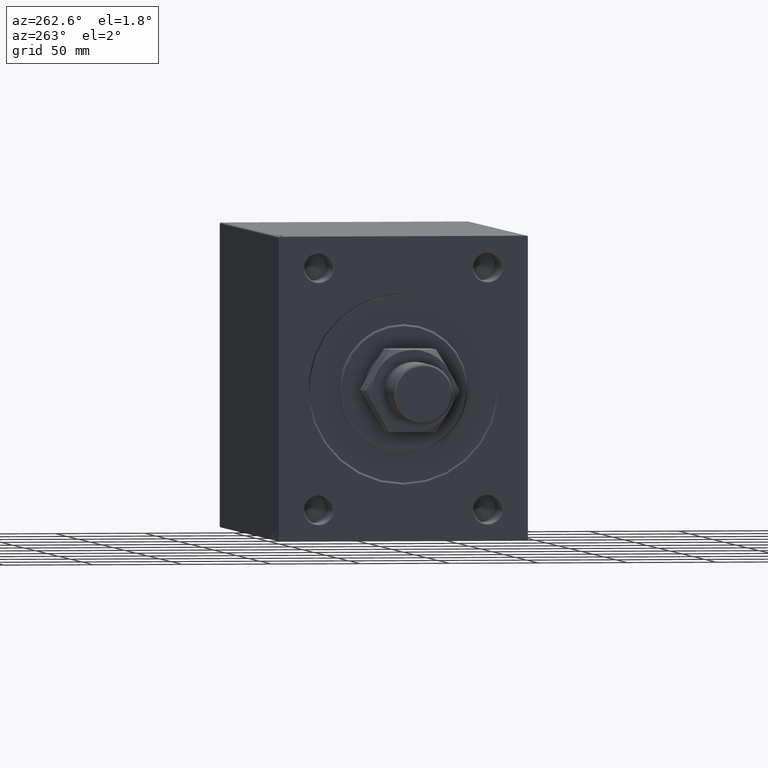
[diagram: clean part render]
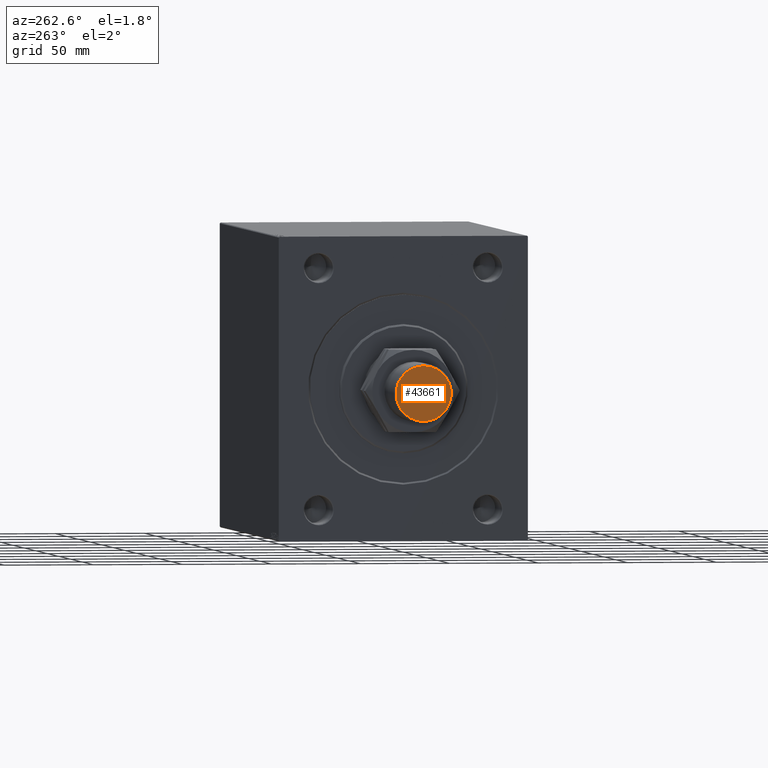
[diagram: same view with one face highlighted and labeled with its STEP entity id]
A machine part, auxiliary view. The second image highlights one B-rep face of the part: STEP entity #43661.
In plain terms, the highlighted planar face has unit normal (-1, 0, 0).
Its self-contained STEP definition (entity closure, byte-faithful):
#2101 = EDGE_CURVE ( 'NONE', #4618, #38456, #37066, .T. ) ;
#3445 = CARTESIAN_POINT ( 'NONE',  ( 0.000000000000000000, 0.000000000000000000, 73.00000000000000000 ) ) ;
#4565 = ORIENTED_EDGE ( 'NONE', *, *, #2101, .T. ) ;
#4618 = VERTEX_POINT ( 'NONE', #24165 ) ;
#10000 = EDGE_LOOP ( 'NONE', ( #4565, #41768 ) ) ;
#11106 = DIRECTION ( 'NONE',  ( 0.000000000000000000, 0.000000000000000000, 1.000000000000000000 ) ) ;
#16479 = DIRECTION ( 'NONE',  ( 1.000000000000000000, 0.000000000000000000, 0.000000000000000000 ) ) ;
#17160 = CARTESIAN_POINT ( 'NONE',  ( 0.000000000000000000, 0.000000000000000000, 73.00000000000000000 ) ) ;
#20690 = EDGE_CURVE ( 'NONE', #38456, #4618, #30060, .T. ) ;
#21040 = FACE_OUTER_BOUND ( 'NONE', #10000, .T. ) ;
#22514 = CARTESIAN_POINT ( 'NONE',  ( 15.50000000000001421, 1.959434878635766315E-15, 73.00000000000000000 ) ) ;
#23833 = AXIS2_PLACEMENT_3D ( 'NONE', #3445, #31708, #45853 ) ;
#24165 = CARTESIAN_POINT ( 'NONE',  ( -15.50000000000001421, 0.000000000000000000, 73.00000000000000000 ) ) ;
#24572 = CARTESIAN_POINT ( 'NONE',  ( 0.000000000000000000, 0.000000000000000000, 73.00000000000000000 ) ) ;
#26921 = DIRECTION ( 'NONE',  ( 0.000000000000000000, 0.000000000000000000, 1.000000000000000000 ) ) ;
#27847 = AXIS2_PLACEMENT_3D ( 'NONE', #17160, #26921, #16479 ) ;
#29190 = DIRECTION ( 'NONE',  ( 1.000000000000000000, 0.000000000000000000, 0.000000000000000000 ) ) ;
#30060 = CIRCLE ( 'NONE', #27847, 15.50000000000001421 ) ;
#31708 = DIRECTION ( 'NONE',  ( 0.000000000000000000, 0.000000000000000000, 1.000000000000000000 ) ) ;
#35181 = PLANE ( 'NONE',  #23833 ) ;
#37066 = CIRCLE ( 'NONE', #42273, 15.50000000000001421 ) ;
#38456 = VERTEX_POINT ( 'NONE', #22514 ) ;
#41768 = ORIENTED_EDGE ( 'NONE', *, *, #20690, .T. ) ;
#42273 = AXIS2_PLACEMENT_3D ( 'NONE', #24572, #11106, #29190 ) ;
#43661 = ADVANCED_FACE ( 'NONE', ( #21040 ), #35181, .T. ) ;
#45853 = DIRECTION ( 'NONE',  ( 1.000000000000000000, 0.000000000000000000, -0.000000000000000000 ) ) ;